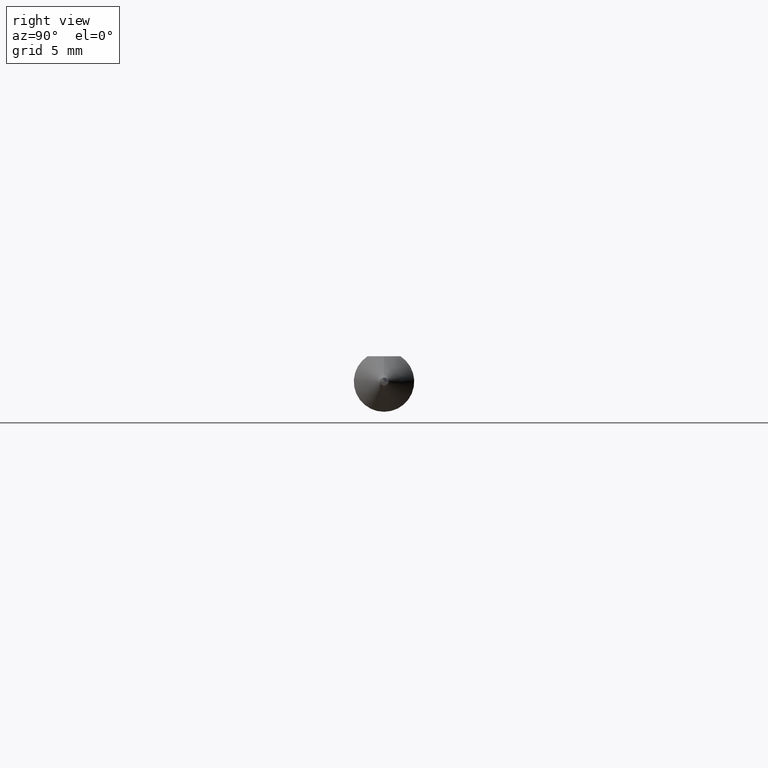
[diagram: clean part render]
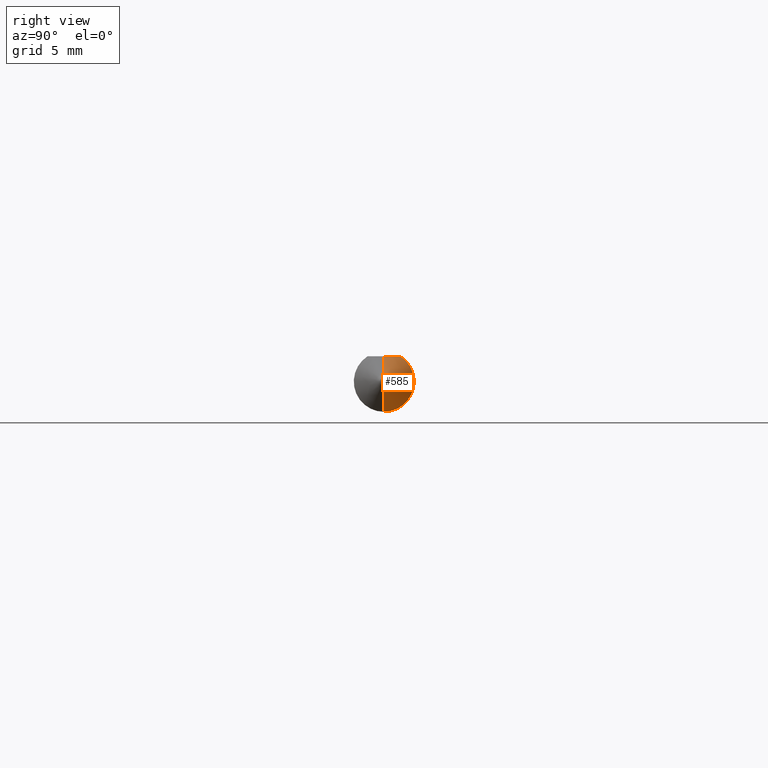
[diagram: same view with one face highlighted and labeled with its STEP entity id]
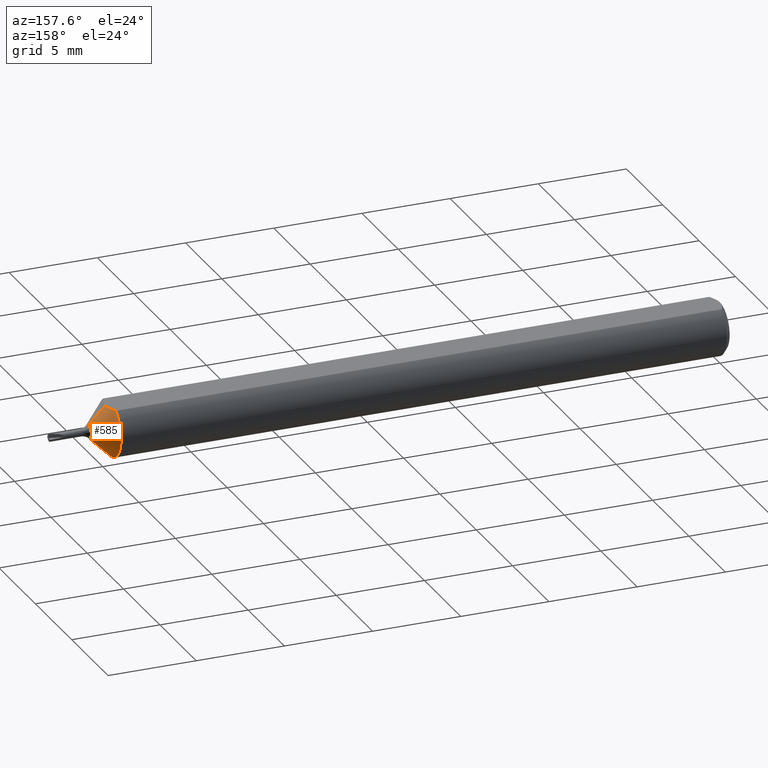
[diagram: same view with one face highlighted and labeled with its STEP entity id]
A machine part, right view. The second image highlights one B-rep face of the part: STEP entity #585.
A second angle (auxiliary view) of the same face is appended — the face is thin or edge-on in the first view.
In plain terms, the highlighted conical surface has half-angle 45 deg.
Its self-contained STEP definition (entity closure, byte-faithful):
#49 = AXIS2_PLACEMENT_3D ( 'NONE', #65, #222, #285 ) ;
#59 = CARTESIAN_POINT ( 'NONE',  ( 1.371579082550520745, 0.01191445041138213153, 0.05235000000000001458 ) ) ;
#65 = CARTESIAN_POINT ( 'NONE',  ( 1.409677669529663779, 0.000000000000000000, 0.000000000000000000 ) ) ;
#97 = VERTEX_POINT ( 'NONE', #549 ) ;
#108 = B_SPLINE_CURVE_WITH_KNOTS ( 'NONE', 3,
 ( #127, #348, #679, #59, #124, #404 ),
 .UNSPECIFIED., .F., .F.,
 ( 4, 2, 4 ),
 ( 0.002206836618262071094, 0.002655951637760988696, 0.003105066657259906299 ),
 .UNSPECIFIED. ) ;
#121 = EDGE_CURVE ( 'NONE', #467, #642, #108, .T. ) ;
#124 = CARTESIAN_POINT ( 'NONE',  ( 1.372650000000000148, 0.005922000946320196864, 0.05235000000000002152 ) ) ;
#126 = CARTESIAN_POINT ( 'NONE',  ( 1.409677669529663779, 0.000000000000000000, 0.000000000000000000 ) ) ;
#127 = CARTESIAN_POINT ( 'NONE',  ( 1.362649999999999917, 0.03386738844375221380, 0.05235000000000000070 ) ) ;
#131 = DIRECTION ( 'NONE',  ( -0.7071067811865479058, 0.000000000000000000, 0.7071067811865469066 ) ) ;
#134 = ORIENTED_EDGE ( 'NONE', *, *, #554, .F. ) ;
#143 = CARTESIAN_POINT ( 'NONE',  ( 1.409677669529663779, 1.876444296597530893E-18, -0.01532233047033630148 ) ) ;
#184 = CARTESIAN_POINT ( 'NONE',  ( 1.372649999999999926, 4.307014571141468397E-21, 0.05235000000000001458 ) ) ;
#207 = ORIENTED_EDGE ( 'NONE', *, *, #618, .T. ) ;
#222 = DIRECTION ( 'NONE',  ( -1.000000000000000000, -0.000000000000000000, -0.000000000000000000 ) ) ;
#228 = ORIENTED_EDGE ( 'NONE', *, *, #409, .T. ) ;
#270 = CARTESIAN_POINT ( 'NONE',  ( 1.409677669529663779, 0.000000000000000000, 0.01532233047033632230 ) ) ;
#285 = DIRECTION ( 'NONE',  ( 0.000000000000000000, 0.000000000000000000, 1.000000000000000000 ) ) ;
#293 = DIRECTION ( 'NONE',  ( 0.000000000000000000, 0.000000000000000000, 1.000000000000000000 ) ) ;
#308 = VERTEX_POINT ( 'NONE', #516 ) ;
#337 = DIRECTION ( 'NONE',  ( 0.000000000000000000, 0.000000000000000000, 1.000000000000000000 ) ) ;
#346 = FACE_OUTER_BOUND ( 'NONE', #420, .T. ) ;
#348 = CARTESIAN_POINT ( 'NONE',  ( 1.365497562589150560, 0.02862501412462241726, 0.05235000000000001458 ) ) ;
#378 = CIRCLE ( 'NONE', #434, 0.06235000000000001652 ) ;
#389 = CONICAL_SURFACE ( 'NONE', #615, 0.01532233047033630148, 0.7853981633974476129 ) ;
#400 = CIRCLE ( 'NONE', #49, 0.01532233047033630148 ) ;
#402 = CARTESIAN_POINT ( 'NONE',  ( 1.362649999999999917, 0.000000000000000000, 0.000000000000000000 ) ) ;
#404 = CARTESIAN_POINT ( 'NONE',  ( 1.372649999999999926, 4.307014571141468397E-21, 0.05235000000000001458 ) ) ;
#409 = EDGE_CURVE ( 'NONE', #308, #97, #576, .T. ) ;
#417 = ORIENTED_EDGE ( 'NONE', *, *, #121, .T. ) ;
#420 = EDGE_LOOP ( 'NONE', ( #207, #228, #134, #417, #481 ) ) ;
#434 = AXIS2_PLACEMENT_3D ( 'NONE', #402, #566, #293 ) ;
#447 = VECTOR ( 'NONE', #545, 39.37007874015748854 ) ;
#467 = VERTEX_POINT ( 'NONE', #655 ) ;
#474 = VERTEX_POINT ( 'NONE', #270 ) ;
#481 = ORIENTED_EDGE ( 'NONE', *, *, #523, .F. ) ;
#510 = DIRECTION ( 'NONE',  ( -1.000000000000000000, -0.000000000000000000, -0.000000000000000000 ) ) ;
#516 = CARTESIAN_POINT ( 'NONE',  ( 1.409677669529663779, 1.876444296597533204E-18, -0.01532233047033632230 ) ) ;
#523 = EDGE_CURVE ( 'NONE', #474, #642, #663, .T. ) ;
#545 = DIRECTION ( 'NONE',  ( -0.7071067811865479058, 8.659560562354925463E-17, -0.7071067811865469066 ) ) ;
#549 = CARTESIAN_POINT ( 'NONE',  ( 1.362649999999999917, 7.635672792683749753E-18, -0.06235000000000001652 ) ) ;
#554 = EDGE_CURVE ( 'NONE', #467, #97, #378, .T. ) ;
#558 = CARTESIAN_POINT ( 'NONE',  ( 1.409677669529663779, 0.000000000000000000, 0.01532233047033630148 ) ) ;
#566 = DIRECTION ( 'NONE',  ( -1.000000000000000000, -0.000000000000000000, -0.000000000000000000 ) ) ;
#576 = LINE ( 'NONE', #143, #447 ) ;
#585 = ADVANCED_FACE ( 'NONE', ( #346 ), #389, .T. ) ;
#605 = VECTOR ( 'NONE', #131, 39.37007874015748854 ) ;
#615 = AXIS2_PLACEMENT_3D ( 'NONE', #126, #510, #337 ) ;
#618 = EDGE_CURVE ( 'NONE', #474, #308, #400, .T. ) ;
#642 = VERTEX_POINT ( 'NONE', #184 ) ;
#655 = CARTESIAN_POINT ( 'NONE',  ( 1.362649999999999917, 0.03386738844375221380, 0.05235000000000000070 ) ) ;
#663 = LINE ( 'NONE', #558, #605 ) ;
#679 = CARTESIAN_POINT ( 'NONE',  ( 1.367985494534934121, 0.02321235750386541410, 0.05235000000000003539 ) ) ;